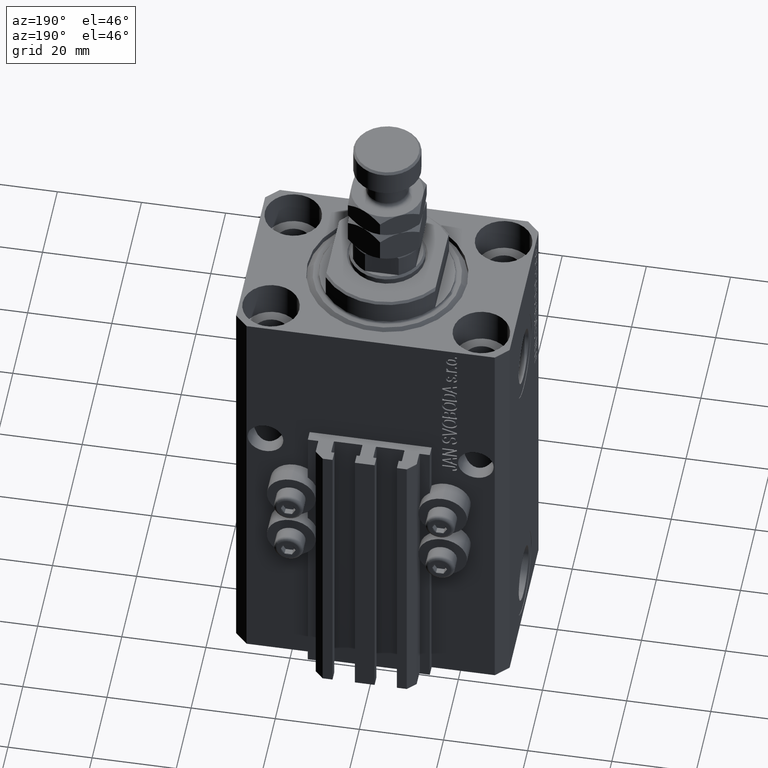
[diagram: clean part render]
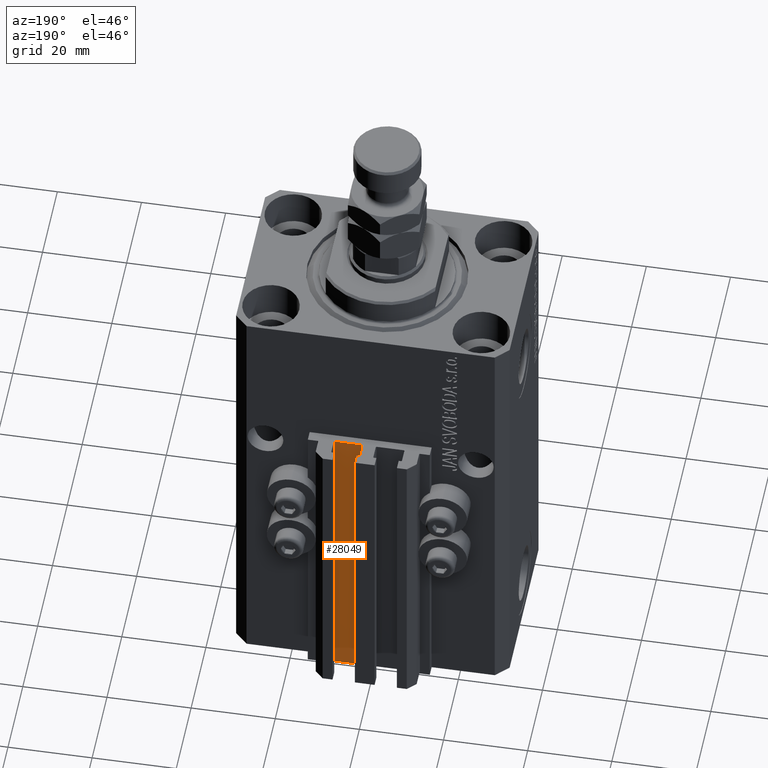
[diagram: same view with one face highlighted and labeled with its STEP entity id]
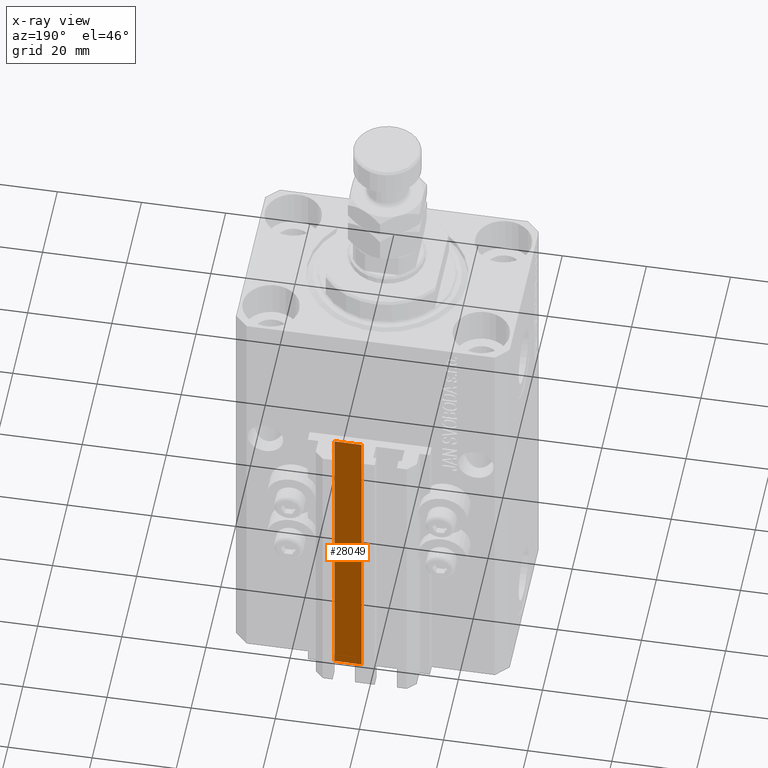
[diagram: x-ray of the same camera — body ghosted, the highlighted face saturated]
A machine part, auxiliary view. The second image highlights one B-rep face of the part: STEP entity #28049.
The next image is the same camera in x-ray: the body ghosted, the highlighted face saturated — about 0% of this face is hidden behind the body in this view.
In plain terms, the highlighted planar face has unit normal (0, 1, 0).
Its self-contained STEP definition (entity closure, byte-faithful):
#994 = EDGE_CURVE ( 'NONE', #7366, #21758, #33457, .T. ) ;
#2676 = CARTESIAN_POINT ( 'NONE',  ( 8.200000000000001066, 24.49999999999949196, -107.0000000000000000 ) ) ;
#5422 = ORIENTED_EDGE ( 'NONE', *, *, #994, .F. ) ;
#7366 = VERTEX_POINT ( 'NONE', #15289 ) ;
#8148 = DIRECTION ( 'NONE',  ( 0.000000000000000000, 0.000000000000000000, 1.000000000000000000 ) ) ;
#8231 = DIRECTION ( 'NONE',  ( 0.000000000000000000, 1.000000000000000000, -0.000000000000000000 ) ) ;
#11180 = DIRECTION ( 'NONE',  ( 0.000000000000000000, 0.000000000000000000, 1.000000000000000000 ) ) ;
#11644 = LINE ( 'NONE', #42315, #26130 ) ;
#12925 = ORIENTED_EDGE ( 'NONE', *, *, #21844, .T. ) ;
#13051 = DIRECTION ( 'NONE',  ( -1.000000000000000000, 0.000000000000000000, 0.000000000000000000 ) ) ;
#13787 = VERTEX_POINT ( 'NONE', #17193 ) ;
#14758 = DIRECTION ( 'NONE',  ( -1.000000000000000000, 0.000000000000000000, 0.000000000000000000 ) ) ;
#15289 = CARTESIAN_POINT ( 'NONE',  ( 8.200000000000001066, 24.49999999999949196, -33.00000000000000000 ) ) ;
#16327 = CARTESIAN_POINT ( 'NONE',  ( 1.800000000000000933, 24.49999999999949196, -33.00000000000000000 ) ) ;
#16347 = EDGE_CURVE ( 'NONE', #13787, #21758, #11644, .T. ) ;
#16452 = FACE_OUTER_BOUND ( 'NONE', #46307, .T. ) ;
#16802 = LINE ( 'NONE', #32007, #45462 ) ;
#17193 = CARTESIAN_POINT ( 'NONE',  ( 1.800000000000000933, 24.49999999999949196, -107.0000000000000000 ) ) ;
#21758 = VERTEX_POINT ( 'NONE', #16327 ) ;
#21844 = EDGE_CURVE ( 'NONE', #44580, #13787, #16802, .T. ) ;
#26130 = VECTOR ( 'NONE', #8148, 1000.000000000000000 ) ;
#26942 = ORIENTED_EDGE ( 'NONE', *, *, #36593, .F. ) ;
#28049 = ADVANCED_FACE ( 'NONE', ( #16452 ), #42405, .T. ) ;
#31186 = CARTESIAN_POINT ( 'NONE',  ( 8.200000000000001066, 24.49999999999949196, -107.0000000000000000 ) ) ;
#32007 = CARTESIAN_POINT ( 'NONE',  ( 8.200000000000001066, 24.49999999999949196, -107.0000000000000000 ) ) ;
#32807 = AXIS2_PLACEMENT_3D ( 'NONE', #31186, #8231, #42896 ) ;
#32960 = CARTESIAN_POINT ( 'NONE',  ( 8.200000000000001066, 24.49999999999949196, -107.0000000000000000 ) ) ;
#33457 = LINE ( 'NONE', #37460, #40160 ) ;
#36577 = VECTOR ( 'NONE', #11180, 1000.000000000000000 ) ;
#36593 = EDGE_CURVE ( 'NONE', #44580, #7366, #48086, .T. ) ;
#37460 = CARTESIAN_POINT ( 'NONE',  ( 8.200000000000001066, 24.49999999999949196, -33.00000000000000000 ) ) ;
#40160 = VECTOR ( 'NONE', #14758, 1000.000000000000000 ) ;
#42315 = CARTESIAN_POINT ( 'NONE',  ( 1.800000000000000933, 24.49999999999949196, -107.0000000000000000 ) ) ;
#42405 = PLANE ( 'NONE',  #32807 ) ;
#42896 = DIRECTION ( 'NONE',  ( 0.000000000000000000, 0.000000000000000000, 1.000000000000000000 ) ) ;
#44580 = VERTEX_POINT ( 'NONE', #32960 ) ;
#45462 = VECTOR ( 'NONE', #13051, 1000.000000000000000 ) ;
#45470 = ORIENTED_EDGE ( 'NONE', *, *, #16347, .T. ) ;
#46307 = EDGE_LOOP ( 'NONE', ( #5422, #26942, #12925, #45470 ) ) ;
#48086 = LINE ( 'NONE', #2676, #36577 ) ;